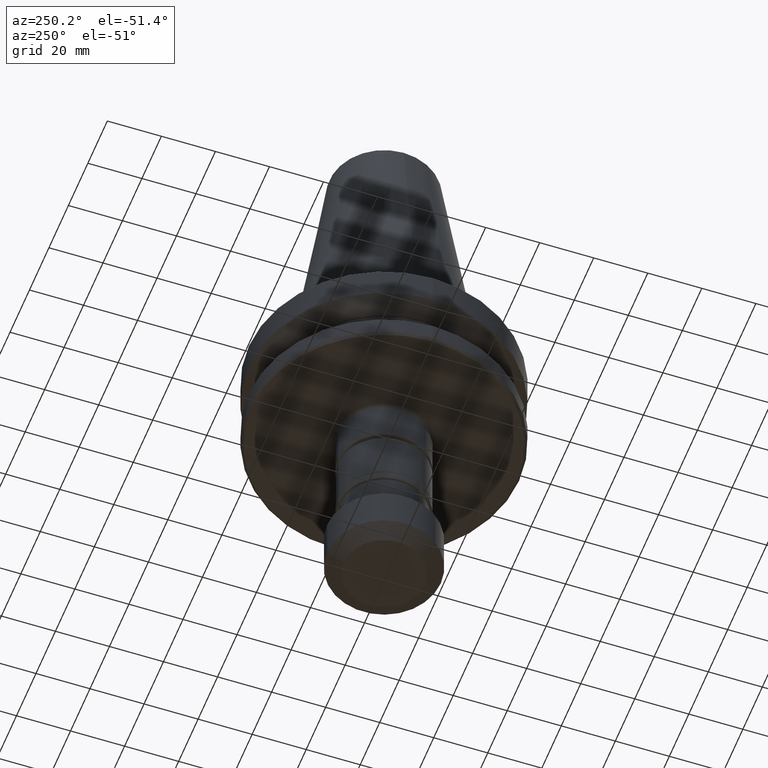
[diagram: clean part render]
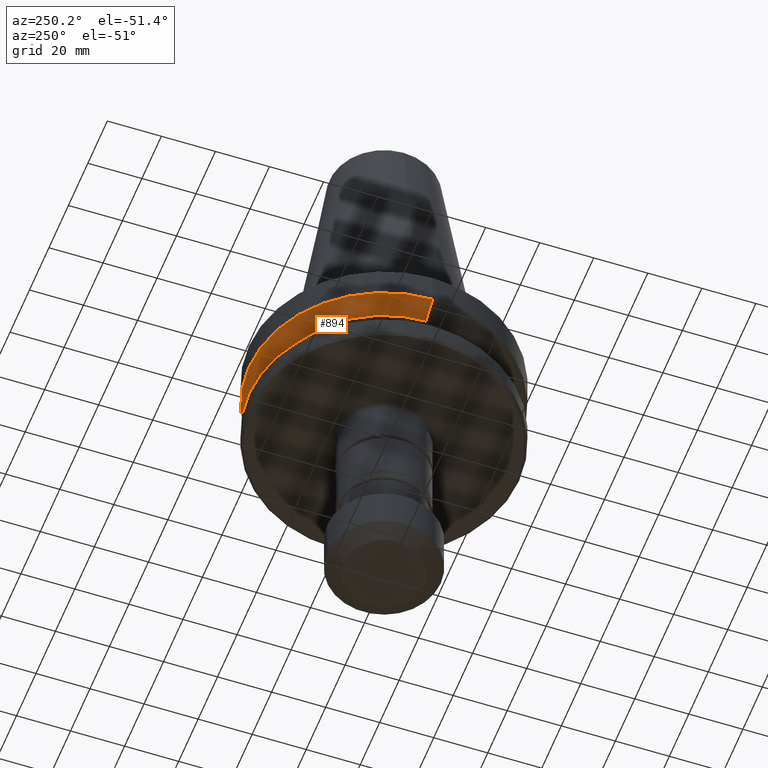
[diagram: same view with one face highlighted and labeled with its STEP entity id]
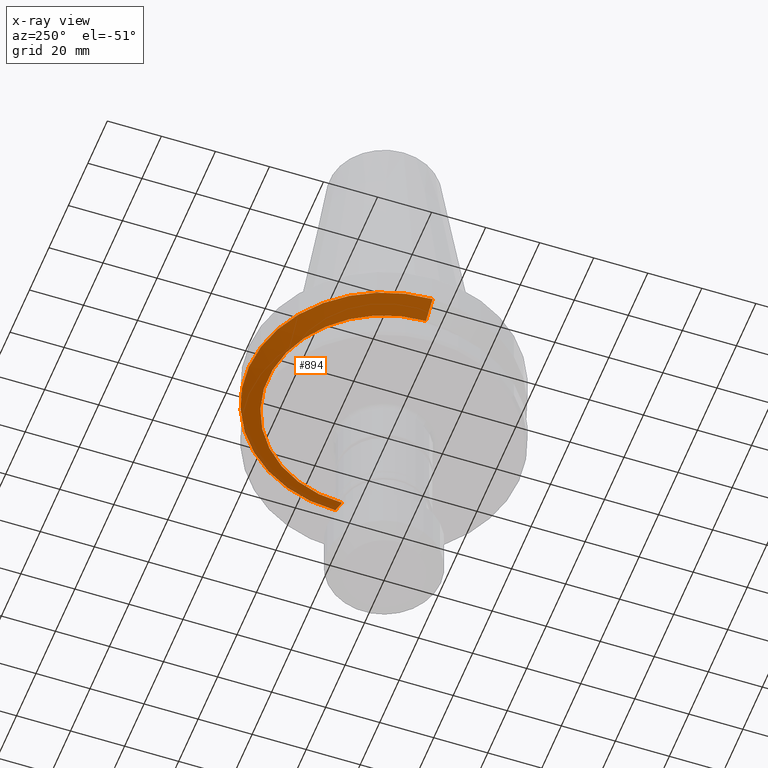
[diagram: x-ray of the same camera — body ghosted, the highlighted face saturated]
A machine part, auxiliary view. The second image highlights one B-rep face of the part: STEP entity #894.
The next image is the same camera in x-ray: the body ghosted, the highlighted face saturated — about 7% of this face is hidden behind the body in this view.
In plain terms, the highlighted conical surface has half-angle 60 deg.
Its self-contained STEP definition (entity closure, byte-faithful):
#121 = CARTESIAN_POINT ( 'NONE',  ( 50.00000000000000000, 0.0000000000000000000, -15.70022000322676600 ) ) ;
#126 = AXIS2_PLACEMENT_3D ( 'NONE', #781, #329, #691 ) ;
#201 = CIRCLE ( 'NONE', #1393, 50.00000000000000000 ) ;
#284 = DIRECTION ( 'NONE',  ( 1.000000000000000000, 0.0000000000000000000, 0.0000000000000000000 ) ) ;
#288 = ORIENTED_EDGE ( 'NONE', *, *, #513, .T. ) ;
#301 = CONICAL_SURFACE ( 'NONE', #126, 50.00000000000000000, 1.047197551196601000 ) ;
#329 = DIRECTION ( 'NONE',  ( -0.0000000000000000000, -0.0000000000000000000, 1.000000000000000000 ) ) ;
#352 = VERTEX_POINT ( 'NONE', #600 ) ;
#358 = VERTEX_POINT ( 'NONE', #1780 ) ;
#366 = AXIS2_PLACEMENT_3D ( 'NONE', #991, #1485, #536 ) ;
#487 = EDGE_CURVE ( 'NONE', #352, #358, #771, .T. ) ;
#505 = VERTEX_POINT ( 'NONE', #1951 ) ;
#513 = EDGE_CURVE ( 'NONE', #637, #505, #1127, .T. ) ;
#536 = DIRECTION ( 'NONE',  ( 1.000000000000000000, 0.0000000000000000000, 0.0000000000000000000 ) ) ;
#600 = CARTESIAN_POINT ( 'NONE',  ( 43.07217782649103600, 0.0000000000000000000, -19.69999999999999600 ) ) ;
#637 = VERTEX_POINT ( 'NONE', #2029 ) ;
#639 = ORIENTED_EDGE ( 'NONE', *, *, #657, .T. ) ;
#657 = EDGE_CURVE ( 'NONE', #352, #637, #1012, .T. ) ;
#691 = DIRECTION ( 'NONE',  ( 1.000000000000000000, 0.0000000000000000000, 0.0000000000000000000 ) ) ;
#718 = FACE_OUTER_BOUND ( 'NONE', #1512, .T. ) ;
#771 = LINE ( 'NONE', #121, #1142 ) ;
#781 = CARTESIAN_POINT ( 'NONE',  ( 0.0000000000000000000, 0.0000000000000000000, -15.70022000322676600 ) ) ;
#832 = DIRECTION ( 'NONE',  ( 0.8660254037844401500, 0.0000000000000000000, 0.4999999999999971700 ) ) ;
#894 = ADVANCED_FACE ( 'NONE', ( #718 ), #301, .T. ) ;
#991 = CARTESIAN_POINT ( 'NONE',  ( 0.0000000000000000000, 0.0000000000000000000, -19.69999999999999600 ) ) ;
#1012 = CIRCLE ( 'NONE', #366, 43.07217782649103600 ) ;
#1105 = VECTOR ( 'NONE', #1635, 1000.000000000000100 ) ;
#1127 = LINE ( 'NONE', #1520, #1105 ) ;
#1142 = VECTOR ( 'NONE', #832, 1000.000000000000100 ) ;
#1348 = DIRECTION ( 'NONE',  ( -0.0000000000000000000, -0.0000000000000000000, 1.000000000000000000 ) ) ;
#1393 = AXIS2_PLACEMENT_3D ( 'NONE', #1774, #1348, #284 ) ;
#1444 = EDGE_CURVE ( 'NONE', #358, #505, #201, .T. ) ;
#1466 = ORIENTED_EDGE ( 'NONE', *, *, #1444, .F. ) ;
#1485 = DIRECTION ( 'NONE',  ( -0.0000000000000000000, -0.0000000000000000000, 1.000000000000000000 ) ) ;
#1512 = EDGE_LOOP ( 'NONE', ( #639, #288, #1466, #1604 ) ) ;
#1520 = CARTESIAN_POINT ( 'NONE',  ( -50.00000000000000000, 6.123233995736766100E-015, -15.70022000322676600 ) ) ;
#1604 = ORIENTED_EDGE ( 'NONE', *, *, #487, .F. ) ;
#1635 = DIRECTION ( 'NONE',  ( -0.8660254037844401500, 1.060575238724908800E-016, 0.4999999999999971700 ) ) ;
#1774 = CARTESIAN_POINT ( 'NONE',  ( 0.0000000000000000000, 0.0000000000000000000, -15.70022000322676600 ) ) ;
#1780 = CARTESIAN_POINT ( 'NONE',  ( 50.00000000000000000, 0.0000000000000000000, -15.70022000322676600 ) ) ;
#1951 = CARTESIAN_POINT ( 'NONE',  ( -50.00000000000000000, 6.123233995736766100E-015, -15.70022000322676600 ) ) ;
#2029 = CARTESIAN_POINT ( 'NONE',  ( -43.07217782649103600, 5.699027233244276000E-015, -19.69999999999999600 ) ) ;